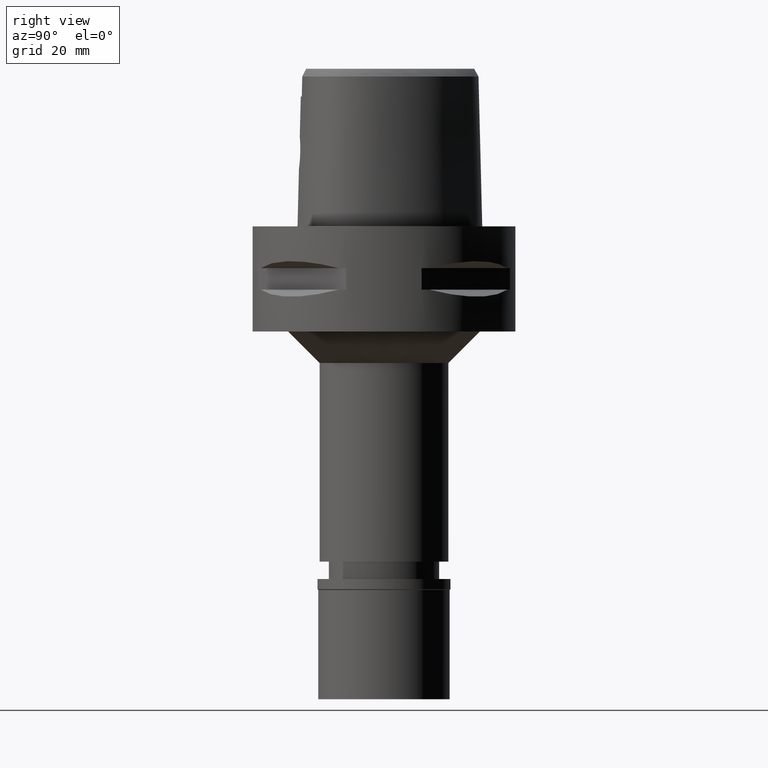
[diagram: clean part render]
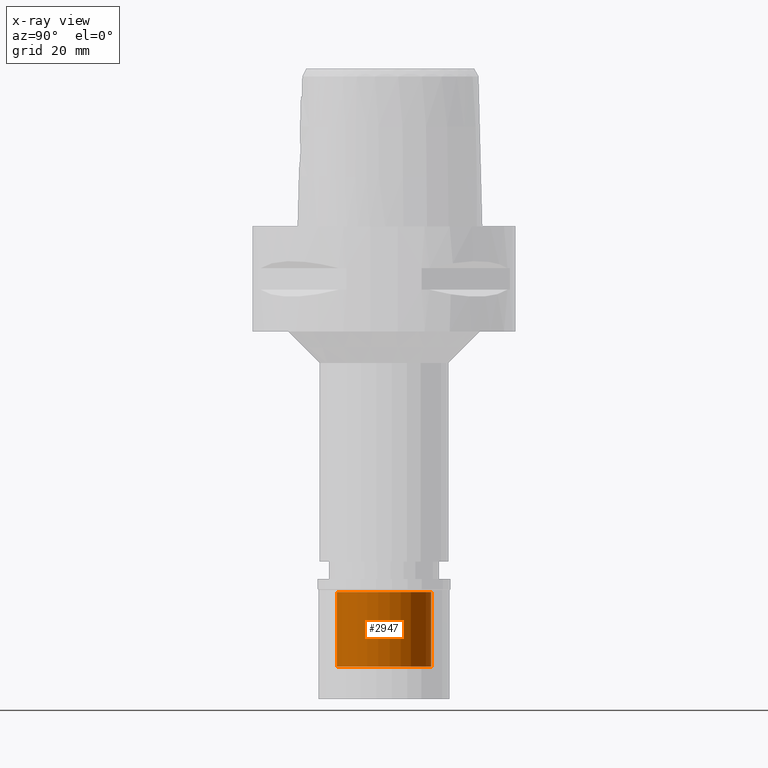
[diagram: x-ray — body ghosted, one internal face saturated and labeled with its STEP entity id]
A machine part, right view, then the same camera in x-ray: the body is ghosted and one INTERNAL B-rep face — a face not visible from any outside direction — is saturated and labeled: STEP entity #2947.
In plain terms, the highlighted cylindrical surface (partial cylindrical patch) has radius 9 mm, axis along (0, 0, -1).
Its self-contained STEP definition (entity closure, byte-faithful):
#293 = ORIENTED_EDGE ( 'NONE', *, *, #2151, .T. ) ;
#378 = CARTESIAN_POINT ( 'NONE',  ( 0.0000000000000000000, 0.0000000000000000000, -16.69999999999999929 ) ) ;
#386 = DIRECTION ( 'NONE',  ( 0.0000000000000000000, 0.0000000000000000000, 1.000000000000000000 ) ) ;
#400 = DIRECTION ( 'NONE',  ( 0.0000000000000000000, -1.000000000000000000, 0.0000000000000000000 ) ) ;
#418 = VERTEX_POINT ( 'NONE', #3360 ) ;
#473 = VERTEX_POINT ( 'NONE', #3656 ) ;
#545 = CIRCLE ( 'NONE', #4352, 9.000000000000000000 ) ;
#844 = CARTESIAN_POINT ( 'NONE',  ( 0.0000000000000000000, 0.0000000000000000000, -2.500000000000000000 ) ) ;
#1088 = ORIENTED_EDGE ( 'NONE', *, *, #1348, .T. ) ;
#1106 = AXIS2_PLACEMENT_3D ( 'NONE', #4535, #3793, #400 ) ;
#1214 = VECTOR ( 'NONE', #2946, 1000.000000000000000 ) ;
#1348 = EDGE_CURVE ( 'NONE', #3595, #473, #4552, .T. ) ;
#1899 = CIRCLE ( 'NONE', #2206, 9.000000000000000000 ) ;
#1908 = ORIENTED_EDGE ( 'NONE', *, *, #4041, .T. ) ;
#1920 = DIRECTION ( 'NONE',  ( 0.0000000000000000000, -1.000000000000000000, 0.0000000000000000000 ) ) ;
#2151 = EDGE_CURVE ( 'NONE', #473, #418, #1899, .T. ) ;
#2157 = CARTESIAN_POINT ( 'NONE',  ( 0.0000000000000000000, -9.000000000000000000, -16.69999999999999929 ) ) ;
#2206 = AXIS2_PLACEMENT_3D ( 'NONE', #844, #386, #1920 ) ;
#2245 = DIRECTION ( 'NONE',  ( 0.0000000000000000000, 1.000000000000000000, 0.0000000000000000000 ) ) ;
#2265 = CYLINDRICAL_SURFACE ( 'NONE', #1106, 9.000000000000000000 ) ;
#2281 = CARTESIAN_POINT ( 'NONE',  ( 0.0000000000000000000, -9.000000000000000000, -16.69999999999999929 ) ) ;
#2451 = EDGE_CURVE ( 'NONE', #4176, #418, #3425, .T. ) ;
#2690 = ORIENTED_EDGE ( 'NONE', *, *, #2451, .F. ) ;
#2946 = DIRECTION ( 'NONE',  ( 0.0000000000000000000, 0.0000000000000000000, 1.000000000000000000 ) ) ;
#2947 = ADVANCED_FACE ( 'NONE', ( #4593 ), #2265, .F. ) ;
#3032 = CARTESIAN_POINT ( 'NONE',  ( 0.0000000000000000000, 9.000000000000000000, -16.69999999999999929 ) ) ;
#3360 = CARTESIAN_POINT ( 'NONE',  ( 0.0000000000000000000, 9.000000000000000000, -2.500000000000000000 ) ) ;
#3425 = LINE ( 'NONE', #3032, #4801 ) ;
#3499 = CARTESIAN_POINT ( 'NONE',  ( 0.0000000000000000000, 9.000000000000000000, -16.69999999999999929 ) ) ;
#3595 = VERTEX_POINT ( 'NONE', #2157 ) ;
#3656 = CARTESIAN_POINT ( 'NONE',  ( 0.0000000000000000000, -9.000000000000000000, -2.500000000000000000 ) ) ;
#3725 = DIRECTION ( 'NONE',  ( 0.0000000000000000000, 0.0000000000000000000, -1.000000000000000000 ) ) ;
#3793 = DIRECTION ( 'NONE',  ( 0.0000000000000000000, 0.0000000000000000000, -1.000000000000000000 ) ) ;
#3874 = DIRECTION ( 'NONE',  ( 0.0000000000000000000, 0.0000000000000000000, 1.000000000000000000 ) ) ;
#4041 = EDGE_CURVE ( 'NONE', #4176, #3595, #545, .T. ) ;
#4176 = VERTEX_POINT ( 'NONE', #3499 ) ;
#4253 = EDGE_LOOP ( 'NONE', ( #1908, #1088, #293, #2690 ) ) ;
#4352 = AXIS2_PLACEMENT_3D ( 'NONE', #378, #3725, #2245 ) ;
#4535 = CARTESIAN_POINT ( 'NONE',  ( 0.0000000000000000000, 0.0000000000000000000, 0.0000000000000000000 ) ) ;
#4552 = LINE ( 'NONE', #2281, #1214 ) ;
#4593 = FACE_OUTER_BOUND ( 'NONE', #4253, .T. ) ;
#4801 = VECTOR ( 'NONE', #3874, 1000.000000000000000 ) ;